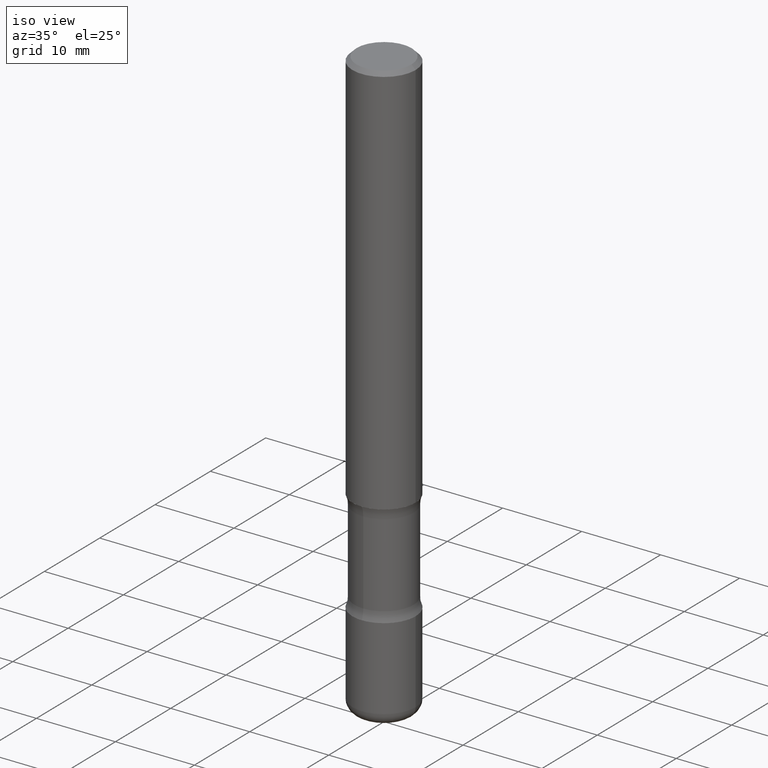
[diagram: clean part render]
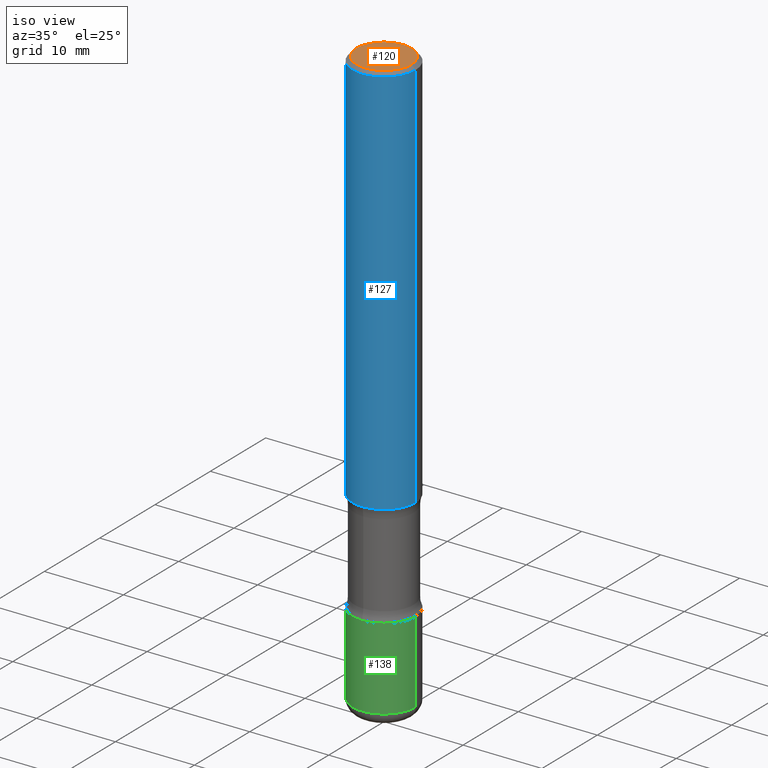
[diagram: same view with three faces highlighted in distinct colors, each labeled with its STEP entity id]
A machine part, iso view with three faces highlighted in distinct colors.
Their STEP definitions:

[orange] entity #120 — the highlighted planar face has unit normal (0, -0, -1).
#11 = CARTESIAN_POINT ( 'NONE',  ( 0.1375000000000000666, -1.046838268059733083E-15, -2.987958743069586240E-17 ) ) ;
#17 = CARTESIAN_POINT ( 'NONE',  ( -0.1375000000000000666, 9.950721815702933218E-16, -2.987958743070971677E-17 ) ) ;
#80 = VERTEX_POINT ( 'NONE', #17 ) ;
#96 = CIRCLE ( 'NONE', #324, 0.1375000000000000666 ) ;
#120 = ADVANCED_FACE ( 'NONE', ( #506 ), #199, .F. ) ;
#148 = DIRECTION ( 'NONE',  ( 1.000000000000000000, -6.982962677686265922E-15, 4.877551999457435150E-29 ) ) ;
#199 = PLANE ( 'NONE',  #284 ) ;
#209 = CIRCLE ( 'NONE', #386, 0.1375000000000000666 ) ;
#210 = ORIENTED_EDGE ( 'NONE', *, *, #501, .T. ) ;
#212 = DIRECTION ( 'NONE',  ( 2.438088387897960049E-29, -3.491481338843145188E-15, -1.000000000000000000 ) ) ;
#235 = EDGE_CURVE ( 'NONE', #556, #80, #209, .T. ) ;
#282 = CARTESIAN_POINT ( 'NONE',  ( 9.601573681818620671E-16, 0.1375000000000000666, -4.950184778062842033E-16 ) ) ;
#284 = AXIS2_PLACEMENT_3D ( 'NONE', #282, #212, #379 ) ;
#324 = AXIS2_PLACEMENT_3D ( 'NONE', #477, #436, #148 ) ;
#343 = DIRECTION ( 'NONE',  ( 1.000000000000000000, -6.982962677686265922E-15, 4.877551999457435150E-29 ) ) ;
#379 = DIRECTION ( 'NONE',  ( -1.000000000000000000, 6.982962677686265922E-15, -4.876176775795935793E-29 ) ) ;
#384 = CARTESIAN_POINT ( 'NONE',  ( 7.306959900346538153E-46, -1.043240219266313067E-31, -2.987958743070287587E-17 ) ) ;
#386 = AXIS2_PLACEMENT_3D ( 'NONE', #384, #521, #343 ) ;
#436 = DIRECTION ( 'NONE',  ( -2.445468806185136597E-29, 3.491481338843145583E-15, 1.000000000000000000 ) ) ;
#477 = CARTESIAN_POINT ( 'NONE',  ( 7.306959900346538153E-46, -1.043240219266313067E-31, -2.987958743070287587E-17 ) ) ;
#501 = EDGE_CURVE ( 'NONE', #80, #556, #96, .T. ) ;
#506 = FACE_OUTER_BOUND ( 'NONE', #517, .T. ) ;
#517 = EDGE_LOOP ( 'NONE', ( #210, #553 ) ) ;
#521 = DIRECTION ( 'NONE',  ( -2.445468806185136597E-29, 3.491481338843145583E-15, 1.000000000000000000 ) ) ;
#553 = ORIENTED_EDGE ( 'NONE', *, *, #235, .T. ) ;
#556 = VERTEX_POINT ( 'NONE', #11 ) ;

[blue] entity #127 — the highlighted cylindrical surface (partial cylindrical patch) has radius 4.0005 mm, axis along (-0, 0, 1).
#37 = DIRECTION ( 'NONE',  ( -2.445468806185136597E-29, 3.491481338843145583E-15, 1.000000000000000000 ) ) ;
#55 = DIRECTION ( 'NONE',  ( 1.000000000000000000, -6.982962677686267499E-15, 4.876176775795935793E-29 ) ) ;
#66 = DIRECTION ( 'NONE',  ( -2.445468806185136597E-29, 3.491481338843145583E-15, 1.000000000000000000 ) ) ;
#92 = CARTESIAN_POINT ( 'NONE',  ( 0.1575000000000005007, -7.972797637248326287E-15, -1.968500000000001249 ) ) ;
#99 = EDGE_CURVE ( 'NONE', #390, #207, #464, .T. ) ;
#109 = CYLINDRICAL_SURFACE ( 'NONE', #399, 0.1575000000000003064 ) ;
#127 = ADVANCED_FACE ( 'NONE', ( #450 ), #109, .T. ) ;
#146 = DIRECTION ( 'NONE',  ( -2.445468806185136597E-29, 3.491481338843145583E-15, 1.000000000000000000 ) ) ;
#156 = CARTESIAN_POINT ( 'NONE',  ( 4.813905344975444077E-29, -6.872981015512735652E-15, -1.968500000000001249 ) ) ;
#166 = DIRECTION ( 'NONE',  ( 1.000000000000000000, -6.982962677686269866E-15, 0.000000000000000000 ) ) ;
#168 = DIRECTION ( 'NONE',  ( -2.445468806185136877E-29, 3.491481338843145188E-15, 1.000000000000000000 ) ) ;
#170 = EDGE_CURVE ( 'NONE', #544, #207, #516, .T. ) ;
#174 = EDGE_CURVE ( 'NONE', #259, #390, #431, .T. ) ;
#207 = VERTEX_POINT ( 'NONE', #249 ) ;
#228 = AXIS2_PLACEMENT_3D ( 'NONE', #156, #66, #166 ) ;
#234 = CARTESIAN_POINT ( 'NONE',  ( 4.890937612370289799E-31, -6.982962677686315028E-17, -0.02000000000000006981 ) ) ;
#249 = CARTESIAN_POINT ( 'NONE',  ( 0.1575000000000000844, -1.150358061425880064E-15, -0.02000000000000006981 ) ) ;
#255 = CIRCLE ( 'NONE', #228, 0.1575000000000005007 ) ;
#259 = VERTEX_POINT ( 'NONE', #376 ) ;
#260 = CARTESIAN_POINT ( 'NONE',  ( -0.1575000000000003064, 1.119104808822159970E-15, -7.747322767151490998E-30 ) ) ;
#277 = AXIS2_PLACEMENT_3D ( 'NONE', #234, #146, #367 ) ;
#280 = EDGE_CURVE ( 'NONE', #259, #544, #255, .T. ) ;
#302 = ORIENTED_EDGE ( 'NONE', *, *, #280, .T. ) ;
#309 = ORIENTED_EDGE ( 'NONE', *, *, #99, .F. ) ;
#323 = VECTOR ( 'NONE', #168, 39.37007874015748143 ) ;
#335 = DIRECTION ( 'NONE',  ( -2.445468806185136877E-29, 3.491481338843145188E-15, 1.000000000000000000 ) ) ;
#338 = ORIENTED_EDGE ( 'NONE', *, *, #170, .T. ) ;
#367 = DIRECTION ( 'NONE',  ( 1.000000000000000000, -6.982962677686267499E-15, 0.000000000000000000 ) ) ;
#376 = CARTESIAN_POINT ( 'NONE',  ( -0.1575000000000005007, -2.352300512322634377E-15, -1.968500000000001249 ) ) ;
#382 = CARTESIAN_POINT ( 'NONE',  ( 0.1575000000000003064, -1.099816621735589255E-15, 7.679978421878613447E-30 ) ) ;
#390 = VERTEX_POINT ( 'NONE', #465 ) ;
#399 = AXIS2_PLACEMENT_3D ( 'NONE', #486, #37, #55 ) ;
#427 = EDGE_LOOP ( 'NONE', ( #518, #302, #338, #309 ) ) ;
#431 = LINE ( 'NONE', #260, #323 ) ;
#432 = VECTOR ( 'NONE', #335, 39.37007874015748143 ) ;
#450 = FACE_OUTER_BOUND ( 'NONE', #427, .T. ) ;
#464 = CIRCLE ( 'NONE', #277, 0.1575000000000000844 ) ;
#465 = CARTESIAN_POINT ( 'NONE',  ( -0.1575000000000000844, 1.029986994958724576E-15, -0.02000000000000006981 ) ) ;
#486 = CARTESIAN_POINT ( 'NONE',  ( 0.000000000000000000, 0.000000000000000000, 0.000000000000000000 ) ) ;
#516 = LINE ( 'NONE', #382, #432 ) ;
#518 = ORIENTED_EDGE ( 'NONE', *, *, #174, .F. ) ;
#544 = VERTEX_POINT ( 'NONE', #92 ) ;

[green] entity #138 — the highlighted cylindrical surface (partial cylindrical patch) has radius 4.0005 mm, axis along (-0, 0, 1).
#15 = DIRECTION ( 'NONE',  ( 1.000000000000000000, -6.982962677686269866E-15, 0.000000000000000000 ) ) ;
#16 = CARTESIAN_POINT ( 'NONE',  ( 0.1575000000000003619, -1.118949939472451419E-14, -2.889800000000000590 ) ) ;
#64 = VECTOR ( 'NONE', #397, 39.37007874015748143 ) ;
#68 = EDGE_CURVE ( 'NONE', #463, #298, #279, .T. ) ;
#71 = VERTEX_POINT ( 'NONE', #404 ) ;
#76 = ORIENTED_EDGE ( 'NONE', *, *, #449, .T. ) ;
#137 = DIRECTION ( 'NONE',  ( -2.445468806185136597E-29, 3.491481338843145583E-15, 1.000000000000000000 ) ) ;
#138 = ADVANCED_FACE ( 'NONE', ( #195 ), #403, .T. ) ;
#141 = CARTESIAN_POINT ( 'NONE',  ( 0.000000000000000000, 0.000000000000000000, 0.000000000000000000 ) ) ;
#144 = DIRECTION ( 'NONE',  ( 1.000000000000000000, -6.982962677686267499E-15, 4.876176775795936353E-29 ) ) ;
#150 = EDGE_CURVE ( 'NONE', #71, #250, #485, .T. ) ;
#152 = AXIS2_PLACEMENT_3D ( 'NONE', #402, #276, #15 ) ;
#195 = FACE_OUTER_BOUND ( 'NONE', #215, .T. ) ;
#202 = CARTESIAN_POINT ( 'NONE',  ( 0.1575000000000003619, -1.099816621735589650E-15, 7.679978421878617651E-30 ) ) ;
#214 = CARTESIAN_POINT ( 'NONE',  ( 0.1575000000000003619, -9.760086934602128694E-15, -2.480399999999999938 ) ) ;
#215 = EDGE_LOOP ( 'NONE', ( #340, #76, #551, #460 ) ) ;
#233 = CARTESIAN_POINT ( 'NONE',  ( -0.1575000000000003619, 1.119104808822160364E-15, -7.747322767151495202E-30 ) ) ;
#250 = VERTEX_POINT ( 'NONE', #549 ) ;
#268 = DIRECTION ( 'NONE',  ( 1.000000000000000000, -6.982962677686269077E-15, 0.000000000000000000 ) ) ;
#276 = DIRECTION ( 'NONE',  ( -2.445468806185136597E-29, 3.491481338843145583E-15, 1.000000000000000000 ) ) ;
#279 = LINE ( 'NONE', #202, #375 ) ;
#298 = VERTEX_POINT ( 'NONE', #214 ) ;
#306 = CIRCLE ( 'NONE', #152, 0.1575000000000003619 ) ;
#318 = CARTESIAN_POINT ( 'NONE',  ( 7.066915756113808586E-29, -1.008968277298892435E-14, -2.889800000000000590 ) ) ;
#340 = ORIENTED_EDGE ( 'NONE', *, *, #150, .F. ) ;
#342 = AXIS2_PLACEMENT_3D ( 'NONE', #318, #137, #268 ) ;
#375 = VECTOR ( 'NONE', #444, 39.37007874015748143 ) ;
#397 = DIRECTION ( 'NONE',  ( -2.445468806185136877E-29, 3.491481338843145188E-15, 1.000000000000000000 ) ) ;
#402 = CARTESIAN_POINT ( 'NONE',  ( 6.065740826861613539E-29, -8.660270312866538847E-15, -2.480399999999999938 ) ) ;
#403 = CYLINDRICAL_SURFACE ( 'NONE', #492, 0.1575000000000003619 ) ;
#404 = CARTESIAN_POINT ( 'NONE',  ( -0.1575000000000003619, -8.970577964166765164E-15, -2.889800000000000590 ) ) ;
#444 = DIRECTION ( 'NONE',  ( -2.445468806185136877E-29, 3.491481338843145188E-15, 1.000000000000000000 ) ) ;
#449 = EDGE_CURVE ( 'NONE', #71, #463, #502, .T. ) ;
#460 = ORIENTED_EDGE ( 'NONE', *, *, #461, .F. ) ;
#461 = EDGE_CURVE ( 'NONE', #250, #298, #306, .T. ) ;
#463 = VERTEX_POINT ( 'NONE', #16 ) ;
#479 = DIRECTION ( 'NONE',  ( -2.445468806185136597E-29, 3.491481338843145583E-15, 1.000000000000000000 ) ) ;
#485 = LINE ( 'NONE', #233, #64 ) ;
#492 = AXIS2_PLACEMENT_3D ( 'NONE', #141, #479, #144 ) ;
#502 = CIRCLE ( 'NONE', #342, 0.1575000000000003897 ) ;
#549 = CARTESIAN_POINT ( 'NONE',  ( -0.1575000000000003619, -8.255871734105570837E-15, -2.480399999999999938 ) ) ;
#551 = ORIENTED_EDGE ( 'NONE', *, *, #68, .T. ) ;